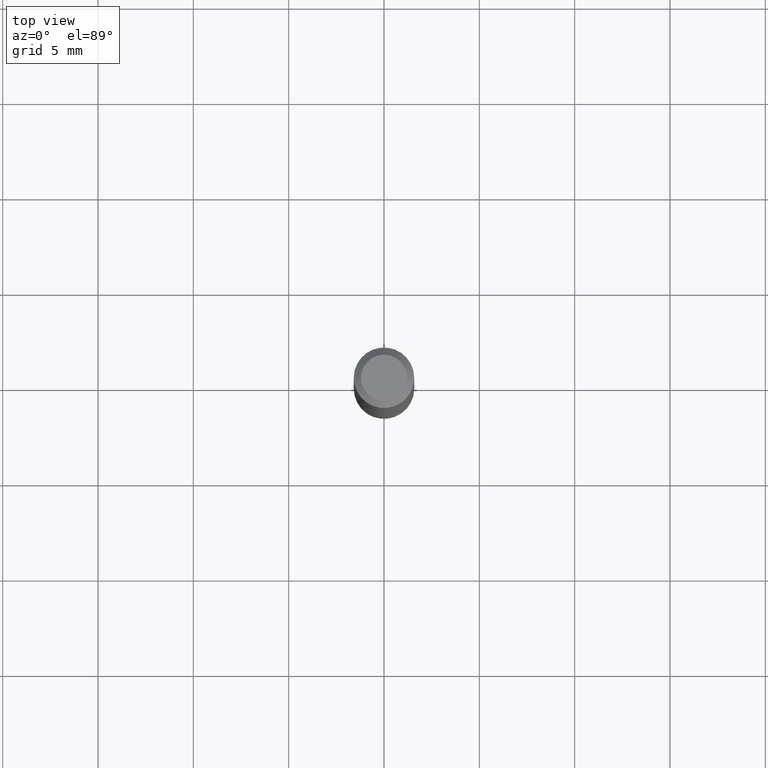
[diagram: clean part render]
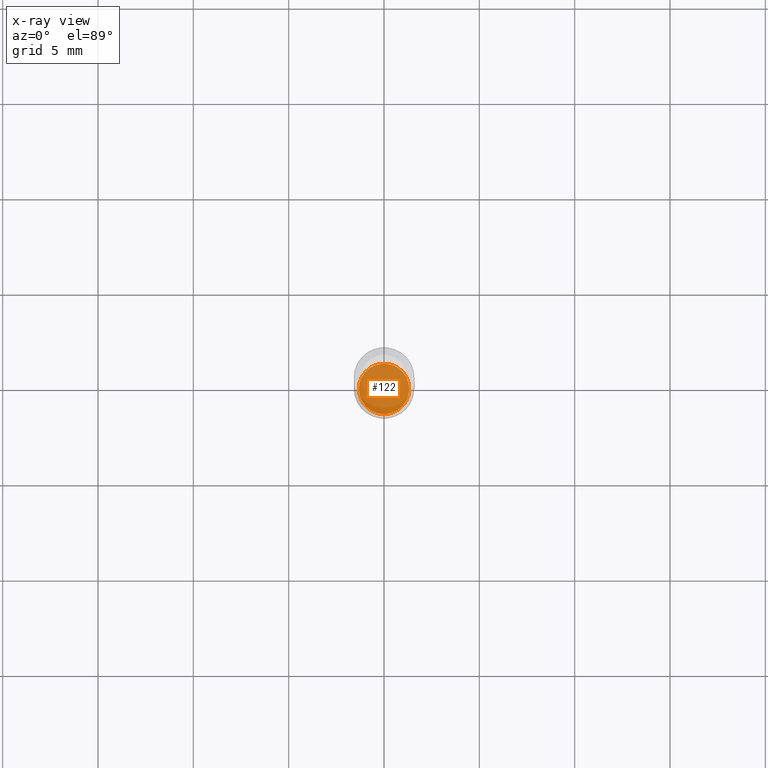
[diagram: x-ray — body ghosted, one internal face saturated and labeled with its STEP entity id]
A machine part, top view, then the same camera in x-ray: the body is ghosted and one INTERNAL B-rep face — a face not visible from any outside direction — is saturated and labeled: STEP entity #122.
In plain terms, the highlighted planar face has unit normal (-0, 0, 1).
Its self-contained STEP definition (entity closure, byte-faithful):
#15 = DIRECTION ( 'NONE',  ( 1.000000000000000000, -6.982962677686269866E-15, 0.000000000000000000 ) ) ;
#16 = EDGE_LOOP ( 'NONE', ( #268, #474 ) ) ;
#75 = AXIS2_PLACEMENT_3D ( 'NONE', #88, #138, #15 ) ;
#78 = DIRECTION ( 'NONE',  ( -2.445468806185136597E-29, 3.491481338843145583E-15, 1.000000000000000000 ) ) ;
#88 = CARTESIAN_POINT ( 'NONE',  ( 3.281819137900453057E-29, -4.685567956727500961E-15, -1.342000000000000082 ) ) ;
#89 = EDGE_CURVE ( 'NONE', #187, #230, #108, .T. ) ;
#108 = CIRCLE ( 'NONE', #495, 0.05200000000000005312 ) ;
#118 = AXIS2_PLACEMENT_3D ( 'NONE', #218, #227, #415 ) ;
#122 = ADVANCED_FACE ( 'NONE', ( #174 ), #457, .F. ) ;
#138 = DIRECTION ( 'NONE',  ( -2.445468806185136597E-29, 3.491481338843145583E-15, 1.000000000000000000 ) ) ;
#171 = CARTESIAN_POINT ( 'NONE',  ( 0.05200000000000005312, -5.048682015967187903E-15, -1.342000000000000082 ) ) ;
#174 = FACE_OUTER_BOUND ( 'NONE', #16, .T. ) ;
#180 = EDGE_CURVE ( 'NONE', #230, #187, #396, .T. ) ;
#187 = VERTEX_POINT ( 'NONE', #171 ) ;
#218 = CARTESIAN_POINT ( 'NONE',  ( 3.281819137900453057E-29, -4.685567956727500961E-15, -1.342000000000000082 ) ) ;
#227 = DIRECTION ( 'NONE',  ( -2.438088387897960049E-29, 3.491481338843145188E-15, 1.000000000000000000 ) ) ;
#230 = VERTEX_POINT ( 'NONE', #385 ) ;
#240 = DIRECTION ( 'NONE',  ( 1.000000000000000000, -6.982962677686269866E-15, 0.000000000000000000 ) ) ;
#268 = ORIENTED_EDGE ( 'NONE', *, *, #89, .F. ) ;
#280 = CARTESIAN_POINT ( 'NONE',  ( 3.281819137900453057E-29, -4.685567956727500961E-15, -1.342000000000000082 ) ) ;
#385 = CARTESIAN_POINT ( 'NONE',  ( -0.05200000000000005312, -4.313436506958137335E-15, -1.342000000000000082 ) ) ;
#396 = CIRCLE ( 'NONE', #75, 0.05200000000000005312 ) ;
#415 = DIRECTION ( 'NONE',  ( 1.000000000000000000, -6.982962677686265922E-15, 4.876176775795935793E-29 ) ) ;
#457 = PLANE ( 'NONE',  #118 ) ;
#474 = ORIENTED_EDGE ( 'NONE', *, *, #180, .F. ) ;
#495 = AXIS2_PLACEMENT_3D ( 'NONE', #280, #78, #240 ) ;